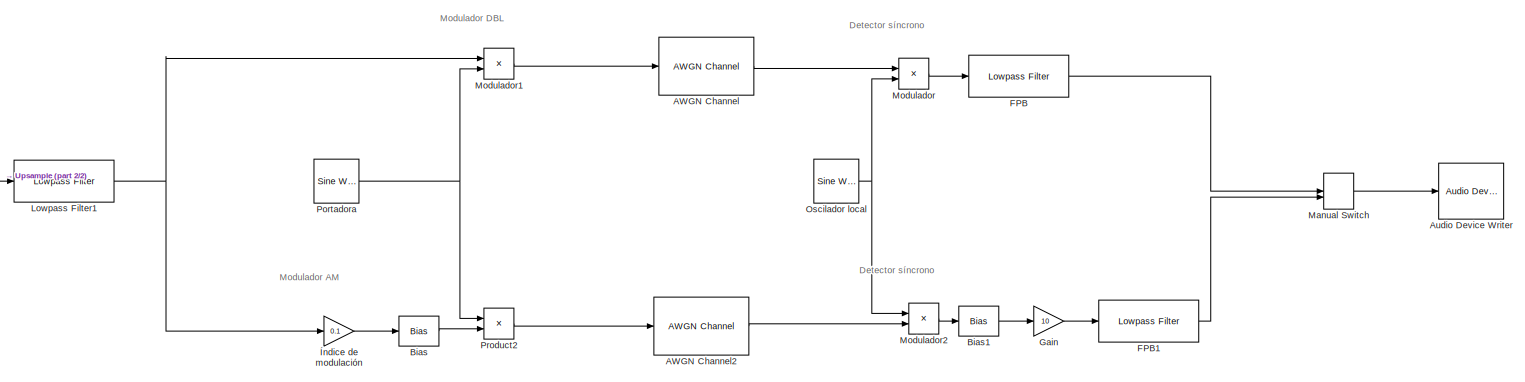
[diagram: root canvas - part 1/2, most of the canvas]
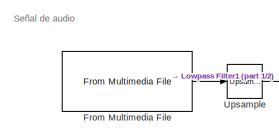
[diagram: root canvas - part 2/2, middle left region]
MODEL slx_b63ffdfb2b3c
KIND model
CONFIG AbsTol = auto
CONFIG EnableMultiTasking = off
CONFIG FixedStep = auto
CONFIG MaxStep = auto
CONFIG MinStep = auto
CONFIG RelTol = 1e-3
CONFIG SampleTimeConstraint = Unconstrained
CONFIG SolverName = VariableStepAuto
CONFIG StartTime = 0.0
CONFIG StopTime = 50
WORKSPACE source: mxarray member
WORKSPACE Upsample = 5
BLOCK [Reference] AWGN Channel  REF=commchan3/AWGN
Channel
  Ports = [1, 1]
  SourceBlock = commchan3/AWGN\nChannel
  SourceProductBaseCode = CM
  SourceType = AWGN Channel
  UserDataPersistent = on
BLOCK [Reference] AWGN Channel2  REF=commchan3/AWGN
Channel
  Ports = [1, 1]
  SourceBlock = commchan3/AWGN\nChannel
  SourceProductBaseCode = CM
  SourceType = AWGN Channel
  UserDataPersistent = on
BLOCK [Reference] Audio Device Writer  REF=dspsnks4/Audio Device
Writer
  Ports = [1]
  SourceBlock = dspsnks4/Audio Device\nWriter
  SourceProductBaseCode = DS
  SourceType = Audio Device Writer
BLOCK [Bias] Bias
  Bias = 1
  SaturateOnIntegerOverflow = off
BLOCK [Bias] Bias1
  Bias = -1
  SaturateOnIntegerOverflow = off
BLOCK [Reference] FPB  REF=dspfdesign/Lowpass Filter
  Ports = [1, 1]
  SourceBlock = dspfdesign/Lowpass Filter
  SourceProductBaseCode = DS
  SourceType = dsp.LowpassFilter
BLOCK [Reference] FPB1  REF=dspfdesign/Lowpass Filter
  Ports = [1, 1]
  SourceBlock = dspfdesign/Lowpass Filter
  SourceProductBaseCode = DS
  SourceType = dsp.LowpassFilter
BLOCK [Reference] From Multimedia File  REF=dspvision/From Multimedia File
  Ports = [0, 1]
  SourceBlock = dspvision/From Multimedia File
  SourceProductBaseCode = DS,HW,VP
  SourceType = From Multimedia File
BLOCK [Gain] Gain
  Gain = 10
BLOCK [Reference] Lowpass Filter1  REF=dspfdesign/Lowpass Filter
  Ports = [1, 1]
  SourceBlock = dspfdesign/Lowpass Filter
  SourceProductBaseCode = DS
  SourceType = dsp.LowpassFilter
BLOCK [ManualSwitch] Manual Switch
  CurrentSetting = 0
BLOCK [Product] Modulador
  OutDataTypeStr = Inherit: Same as first input
  Ports = [2, 1]
BLOCK [Product] Modulador1
  OutDataTypeStr = Inherit: Same as first input
  Ports = [2, 1]
BLOCK [Product] Modulador2
  OutDataTypeStr = Inherit: Same as first input
  Ports = [2, 1]
BLOCK [Reference] Oscilador local  REF=dspsrcs4/Sine Wave
  Ports = [0, 1]
  SourceBlock = dspsrcs4/Sine Wave
  SourceProductBaseCode = DS
  SourceType = Sine Wave
BLOCK [Reference] Portadora  REF=dspsrcs4/Sine Wave
  Ports = [0, 1]
  SourceBlock = dspsrcs4/Sine Wave
  SourceProductBaseCode = DS
  SourceType = Sine Wave
BLOCK [Product] Product2
  OutDataTypeStr = Inherit: Same as first input
  Ports = [2, 1]
BLOCK [Reference] Upsample  REF=dspsigops/Upsample
  Ports = [1, 1]
  SourceBlock = dspsigops/Upsample
  SourceProductBaseCode = DS
  SourceType = Upsample
  UserDataPersistent = on
BLOCK [Gain] Índice de modulación 
  Gain = 0.1
ANNOTATION (root): Detector síncrono
ANNOTATION (root): Modulador AM
ANNOTATION (root): Modulador DBL
ANNOTATION (root): Señal de audio
LINE AWGN Channel2:1 -> Modulador2:2
LINE AWGN Channel:1 -> Modulador:1
LINE Bias1:1 -> Gain:1
LINE Bias:1 -> Product2:2
LINE FPB1:1 -> Manual Switch:2
LINE FPB:1 -> Manual Switch:1
LINE From Multimedia File:1 -> Upsample:1
LINE Gain:1 -> FPB1:1
NET Lowpass Filter1:1 -> Modulador1:1, Índice de modulación :1
LINE Manual Switch:1 -> Audio Device Writer:1
LINE Modulador1:1 -> AWGN Channel:1
LINE Modulador2:1 -> Bias1:1
LINE Modulador:1 -> FPB:1
NET Oscilador local:1 -> Modulador2:1, Modulador:2
NET Portadora:1 -> Modulador1:2, Product2:1
LINE Product2:1 -> AWGN Channel2:1
LINE Upsample:1 -> Lowpass Filter1:1
LINE Índice de modulación :1 -> Bias:1
note: NET lines group one-source signal fan-out (src -> all destinations, sorted); 1:1 wires keep LINE
